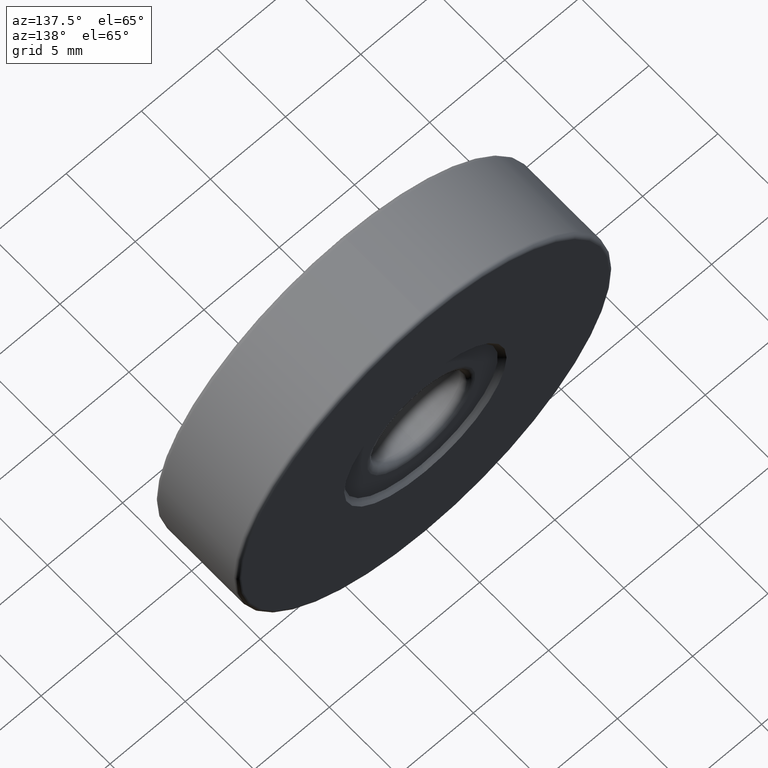
[diagram: clean part render]
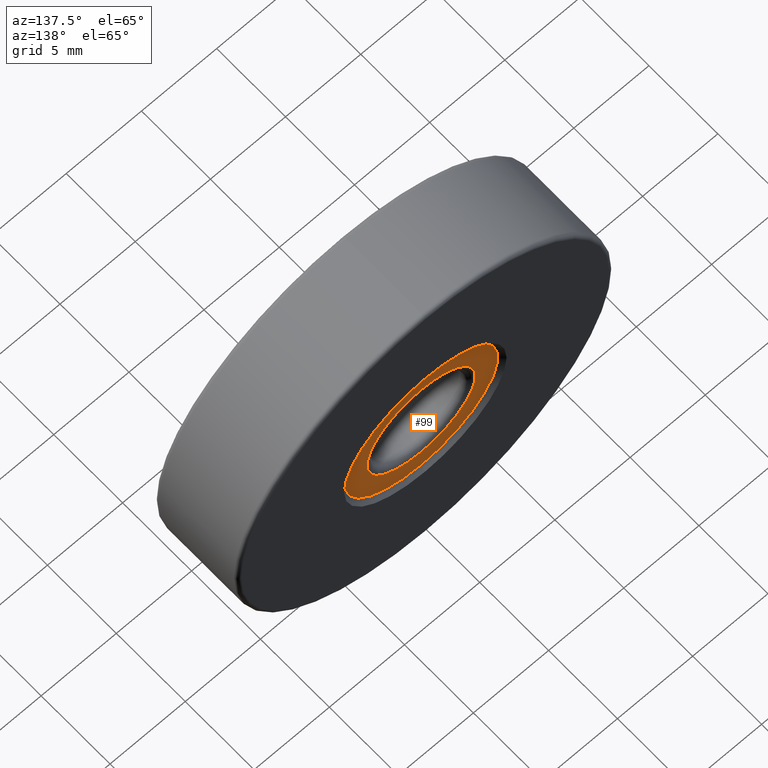
[diagram: same view with one face highlighted and labeled with its STEP entity id]
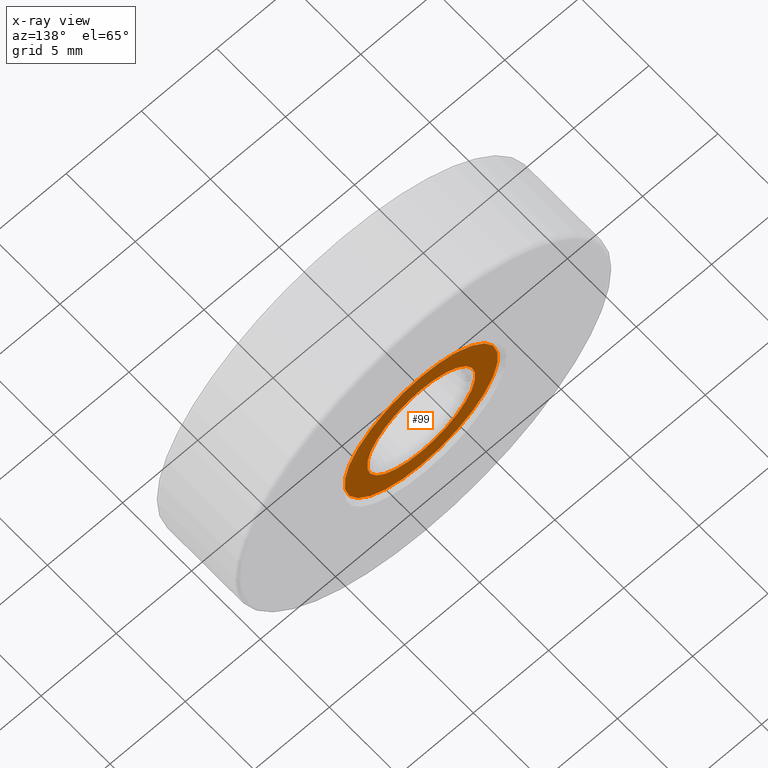
[diagram: x-ray of the same camera — body ghosted, the highlighted face saturated]
A machine part, auxiliary view. The second image highlights one B-rep face of the part: STEP entity #99.
The next image is the same camera in x-ray: the body ghosted, the highlighted face saturated — about 0% of this face is hidden behind the body in this view.
In plain terms, the highlighted planar face has unit normal (0, 1, 0).
Its self-contained STEP definition (entity closure, byte-faithful):
#14 = AXIS2_PLACEMENT_3D ( 'NONE', #481, #433, #151 ) ;
#20 = DIRECTION ( 'NONE',  ( -0.0000000000000000000, -1.000000000000000000, -0.0000000000000000000 ) ) ;
#28 = ORIENTED_EDGE ( 'NONE', *, *, #333, .T. ) ;
#59 = PLANE ( 'NONE',  #570 ) ;
#69 = VERTEX_POINT ( 'NONE', #617 ) ;
#99 = ADVANCED_FACE ( 'NONE', ( #435, #343 ), #59, .T. ) ;
#110 = DIRECTION ( 'NONE',  ( 0.0000000000000000000, -0.0000000000000000000, 1.000000000000000000 ) ) ;
#147 = CARTESIAN_POINT ( 'NONE',  ( -4.682026255059964726, 1.105024023001725419, 25.00000000000000000 ) ) ;
#150 = DIRECTION ( 'NONE',  ( 0.0000000000000000000, 0.0000000000000000000, 1.000000000000000000 ) ) ;
#151 = DIRECTION ( 'NONE',  ( 0.0000000000000000000, 0.0000000000000000000, 1.000000000000000000 ) ) ;
#175 = DIRECTION ( 'NONE',  ( 0.0000000000000000000, 0.0000000000000000000, 1.000000000000000000 ) ) ;
#177 = EDGE_CURVE ( 'NONE', #69, #367, #594, .T. ) ;
#196 = AXIS2_PLACEMENT_3D ( 'NONE', #285, #293, #150 ) ;
#210 = DIRECTION ( 'NONE',  ( 0.0000000000000000000, 0.0000000000000000000, 1.000000000000000000 ) ) ;
#222 = EDGE_CURVE ( 'NONE', #530, #444, #612, .T. ) ;
#284 = ORIENTED_EDGE ( 'NONE', *, *, #478, .T. ) ;
#285 = CARTESIAN_POINT ( 'NONE',  ( -4.682026255059964726, 1.105024023001725419, 25.00000000000000000 ) ) ;
#289 = AXIS2_PLACEMENT_3D ( 'NONE', #506, #20, #175 ) ;
#293 = DIRECTION ( 'NONE',  ( 0.0000000000000000000, 1.000000000000000000, 0.0000000000000000000 ) ) ;
#333 = EDGE_CURVE ( 'NONE', #444, #530, #611, .T. ) ;
#343 = FACE_OUTER_BOUND ( 'NONE', #440, .T. ) ;
#347 = CARTESIAN_POINT ( 'NONE',  ( -4.682026255059963837, 1.105024023001725197, 21.40000000000000213 ) ) ;
#367 = VERTEX_POINT ( 'NONE', #460 ) ;
#384 = EDGE_LOOP ( 'NONE', ( #28, #501 ) ) ;
#386 = CARTESIAN_POINT ( 'NONE',  ( -4.682026255059964726, 1.105024023001725197, 28.60000000000000142 ) ) ;
#433 = DIRECTION ( 'NONE',  ( 0.0000000000000000000, 1.000000000000000000, 0.0000000000000000000 ) ) ;
#435 = FACE_BOUND ( 'NONE', #384, .T. ) ;
#439 = DIRECTION ( 'NONE',  ( -0.0000000000000000000, -1.000000000000000000, -0.0000000000000000000 ) ) ;
#440 = EDGE_LOOP ( 'NONE', ( #462, #284 ) ) ;
#444 = VERTEX_POINT ( 'NONE', #386 ) ;
#460 = CARTESIAN_POINT ( 'NONE',  ( -4.682026255059963837, 1.105024023001725419, 19.90000000000000213 ) ) ;
#462 = ORIENTED_EDGE ( 'NONE', *, *, #177, .T. ) ;
#478 = EDGE_CURVE ( 'NONE', #367, #69, #509, .T. ) ;
#481 = CARTESIAN_POINT ( 'NONE',  ( -4.682026255059964726, 1.105024023001725419, 25.00000000000000000 ) ) ;
#485 = AXIS2_PLACEMENT_3D ( 'NONE', #493, #439, #210 ) ;
#493 = CARTESIAN_POINT ( 'NONE',  ( -4.682026255059964726, 1.105024023001725419, 25.00000000000000000 ) ) ;
#501 = ORIENTED_EDGE ( 'NONE', *, *, #222, .T. ) ;
#506 = CARTESIAN_POINT ( 'NONE',  ( -4.682026255059964726, 1.105024023001725419, 25.00000000000000000 ) ) ;
#509 = CIRCLE ( 'NONE', #196, 5.100000000000000533 ) ;
#530 = VERTEX_POINT ( 'NONE', #347 ) ;
#532 = DIRECTION ( 'NONE',  ( 0.0000000000000000000, 1.000000000000000000, 0.0000000000000000000 ) ) ;
#570 = AXIS2_PLACEMENT_3D ( 'NONE', #147, #532, #110 ) ;
#594 = CIRCLE ( 'NONE', #14, 5.100000000000000533 ) ;
#611 = CIRCLE ( 'NONE', #289, 3.599999999999999201 ) ;
#612 = CIRCLE ( 'NONE', #485, 3.599999999999999201 ) ;
#617 = CARTESIAN_POINT ( 'NONE',  ( -4.682026255059964726, 1.105024023001725419, 30.10000000000000142 ) ) ;